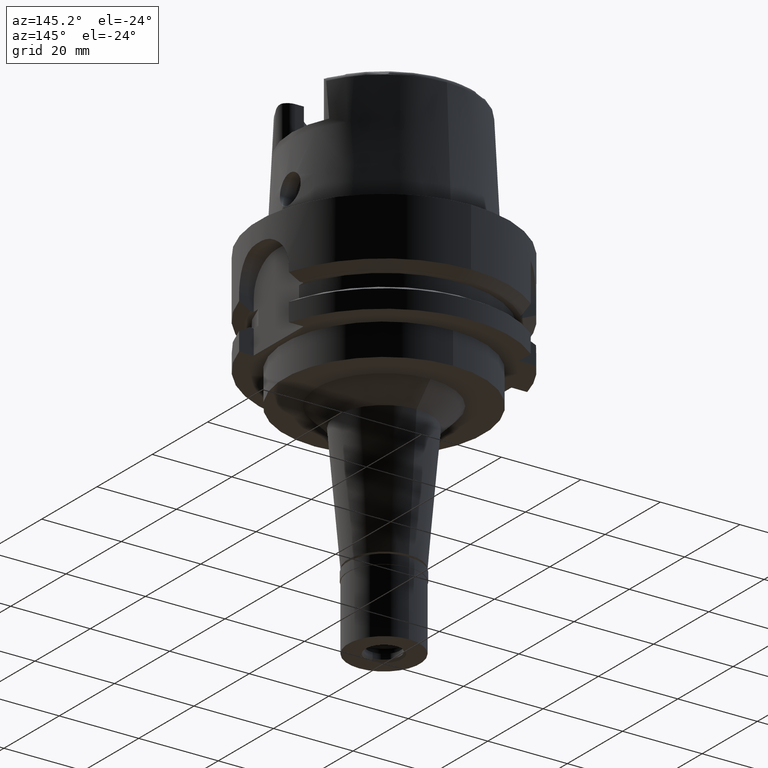
[diagram: clean part render]
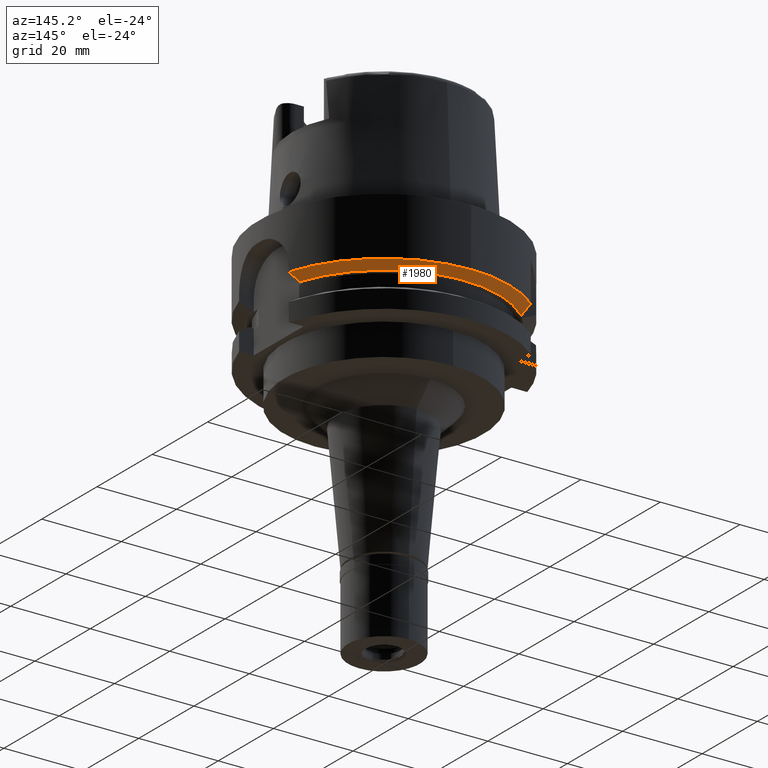
[diagram: same view with one face highlighted and labeled with its STEP entity id]
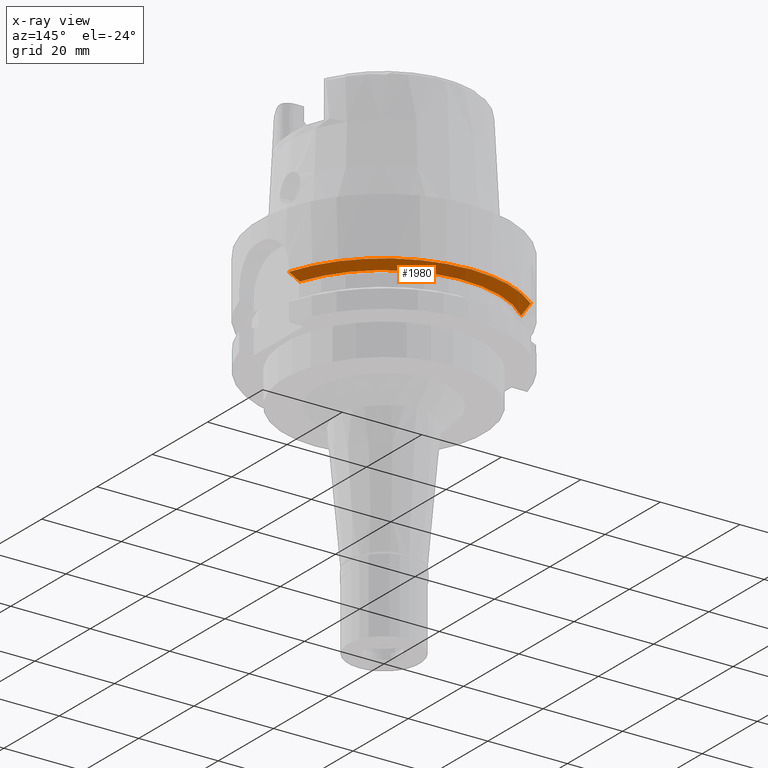
[diagram: x-ray of the same camera — body ghosted, the highlighted face saturated]
A machine part, auxiliary view. The second image highlights one B-rep face of the part: STEP entity #1980.
The next image is the same camera in x-ray: the body ghosted, the highlighted face saturated — about 0% of this face is hidden behind the body in this view.
In plain terms, the highlighted conical surface has half-angle 60 deg.
Its self-contained STEP definition (entity closure, byte-faithful):
#165 = CARTESIAN_POINT ( 'NONE',  ( -19.99998591006000126, 20.85848287970000214, -16.12500000000000000 ) ) ;
#458 = CARTESIAN_POINT ( 'NONE',  ( -20.00000000000000000, 23.12606476112103238, -15.16228535714003200 ) ) ;
#677 = ORIENTED_EDGE ( 'NONE', *, *, #2489, .F. ) ;
#718 = CIRCLE ( 'NONE', #3391, 31.49999999999999645 ) ;
#874 = CARTESIAN_POINT ( 'NONE',  ( 0.0000000000000000000, 0.0000000000000000000, -15.37375046262000033 ) ) ;
#944 = VERTEX_POINT ( 'NONE', #165 ) ;
#993 = CARTESIAN_POINT ( 'NONE',  ( -19.99999697632999940, 24.33618953219000147, -14.62251175975000095 ) ) ;
#1054 = B_SPLINE_CURVE_WITH_KNOTS ( 'NONE', 3,
 ( #4692, #1614, #3770, #5492 ),
 .UNSPECIFIED., .F., .F.,
 ( 4, 4 ),
 ( 0.0000000000000000000, 1.000000000000000000 ),
 .UNSPECIFIED. ) ;
#1258 = CARTESIAN_POINT ( 'NONE',  ( 30.18691773976999926, 8.999999854040000358, -14.62250210248999949 ) ) ;
#1294 = FACE_OUTER_BOUND ( 'NONE', #4716, .T. ) ;
#1599 = ORIENTED_EDGE ( 'NONE', *, *, #2916, .T. ) ;
#1609 = DIRECTION ( 'NONE',  ( 0.0000000000000000000, 0.0000000000000000000, 1.000000000000000000 ) ) ;
#1614 = CARTESIAN_POINT ( 'NONE',  ( 29.24010042977924329, 8.999999708208072491, -15.14635918912129497 ) ) ;
#1699 = CIRCLE ( 'NONE', #4304, 31.50000000000000000 ) ;
#1732 = VERTEX_POINT ( 'NONE', #2148 ) ;
#1737 = ORIENTED_EDGE ( 'NONE', *, *, #4670, .F. ) ;
#1896 = VERTEX_POINT ( 'NONE', #1906 ) ;
#1906 = CARTESIAN_POINT ( 'NONE',  ( -19.99999697632999940, 24.33618953219000147, -14.62251175975000095 ) ) ;
#1957 = DIRECTION ( 'NONE',  ( 0.9583148474999051425, 0.2857142857143015191, 0.0000000000000000000 ) ) ;
#1980 = ADVANCED_FACE ( 'NONE', ( #1294 ), #5001, .T. ) ;
#2017 = CARTESIAN_POINT ( 'NONE',  ( 0.0000000000000000000, 0.0000000000000000000, -14.62250092523999889 ) ) ;
#2024 = EDGE_CURVE ( 'NONE', #3839, #1732, #1054, .T. ) ;
#2131 = AXIS2_PLACEMENT_3D ( 'NONE', #874, #2942, #4246 ) ;
#2148 = CARTESIAN_POINT ( 'NONE',  ( 27.46036355686999997, 8.999999271230000986, -16.12500000000000000 ) ) ;
#2376 = CARTESIAN_POINT ( 'NONE',  ( 0.0000000000000000000, 31.50000000000000000, -14.62250092523999889 ) ) ;
#2489 = EDGE_CURVE ( 'NONE', #3839, #3647, #718, .T. ) ;
#2591 = EDGE_CURVE ( 'NONE', #3647, #1896, #1699, .T. ) ;
#2916 = EDGE_CURVE ( 'NONE', #1732, #944, #4484, .T. ) ;
#2942 = DIRECTION ( 'NONE',  ( 0.0000000000000000000, 0.0000000000000000000, 1.000000000000000000 ) ) ;
#3254 = DIRECTION ( 'NONE',  ( 0.0000000000000000000, 0.0000000000000000000, 1.000000000000000000 ) ) ;
#3309 = AXIS2_PLACEMENT_3D ( 'NONE', #3545, #3517, #4781 ) ;
#3391 = AXIS2_PLACEMENT_3D ( 'NONE', #4128, #3254, #1957 ) ;
#3517 = DIRECTION ( 'NONE',  ( 0.0000000000000000000, 0.0000000000000000000, 1.000000000000000000 ) ) ;
#3545 = CARTESIAN_POINT ( 'NONE',  ( 0.0000000000000000000, 0.0000000000000000000, -16.12500000000000000 ) ) ;
#3647 = VERTEX_POINT ( 'NONE', #2376 ) ;
#3734 = DIRECTION ( 'NONE',  ( 0.0000000000000000000, 1.000000000000000000, 0.0000000000000000000 ) ) ;
#3770 = CARTESIAN_POINT ( 'NONE',  ( 28.33125882909007842, 8.999998540598062036, -15.64719076358595373 ) ) ;
#3839 = VERTEX_POINT ( 'NONE', #1258 ) ;
#4128 = CARTESIAN_POINT ( 'NONE',  ( 0.0000000000000000000, 0.0000000000000000000, -14.62250092523999889 ) ) ;
#4246 = DIRECTION ( 'NONE',  ( 0.0000000000000000000, 1.000000000000000000, 0.0000000000000000000 ) ) ;
#4304 = AXIS2_PLACEMENT_3D ( 'NONE', #2017, #1609, #3734 ) ;
#4310 = CARTESIAN_POINT ( 'NONE',  ( -19.99998591006000126, 20.85848287970000214, -16.12500000000000000 ) ) ;
#4484 = CIRCLE ( 'NONE', #3309, 28.89759526419000224 ) ;
#4590 = ORIENTED_EDGE ( 'NONE', *, *, #2024, .T. ) ;
#4670 = EDGE_CURVE ( 'NONE', #1896, #944, #5305, .T. ) ;
#4692 = CARTESIAN_POINT ( 'NONE',  ( 30.18691773976999926, 8.999999854040000358, -14.62250210248999949 ) ) ;
#4716 = EDGE_LOOP ( 'NONE', ( #5339, #677, #4590, #1599, #1737 ) ) ;
#4781 = DIRECTION ( 'NONE',  ( 0.0000000000000000000, 1.000000000000000000, 0.0000000000000000000 ) ) ;
#5001 = CONICAL_SURFACE ( 'NONE', #2131, 30.19879763209999979, 1.047197551196400456 ) ;
#5146 = CARTESIAN_POINT ( 'NONE',  ( -20.00000000000000000, 21.96682921029103497, -15.66311477055670132 ) ) ;
#5305 = B_SPLINE_CURVE_WITH_KNOTS ( 'NONE', 3,
 ( #993, #458, #5146, #4310 ),
 .UNSPECIFIED., .F., .F.,
 ( 4, 4 ),
 ( 0.0000000000000000000, 1.000000000000000000 ),
 .UNSPECIFIED. ) ;
#5339 = ORIENTED_EDGE ( 'NONE', *, *, #2591, .F. ) ;
#5492 = CARTESIAN_POINT ( 'NONE',  ( 27.46036355686999997, 8.999999271230000986, -16.12500000000000000 ) ) ;